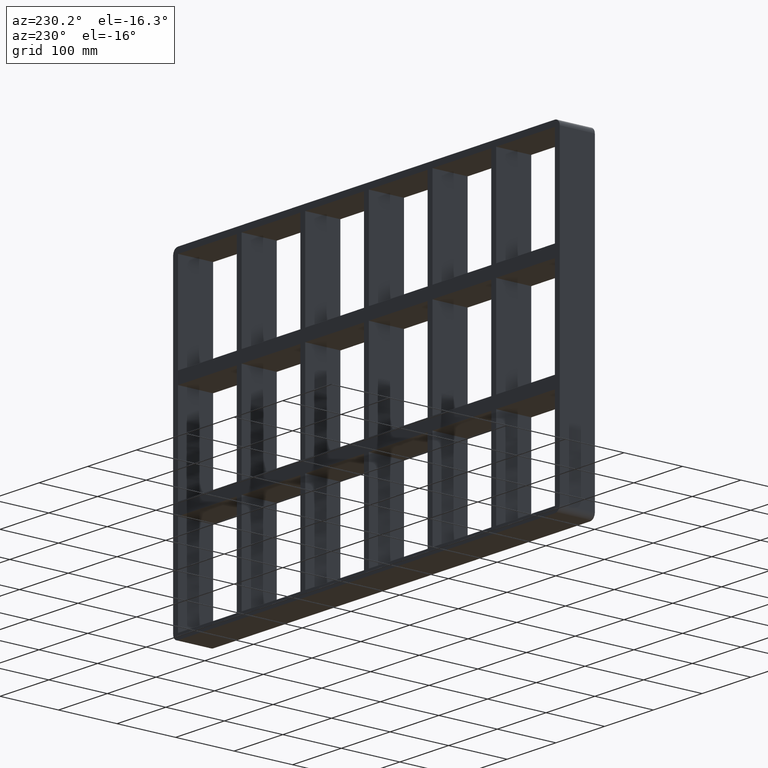
[diagram: clean part render]
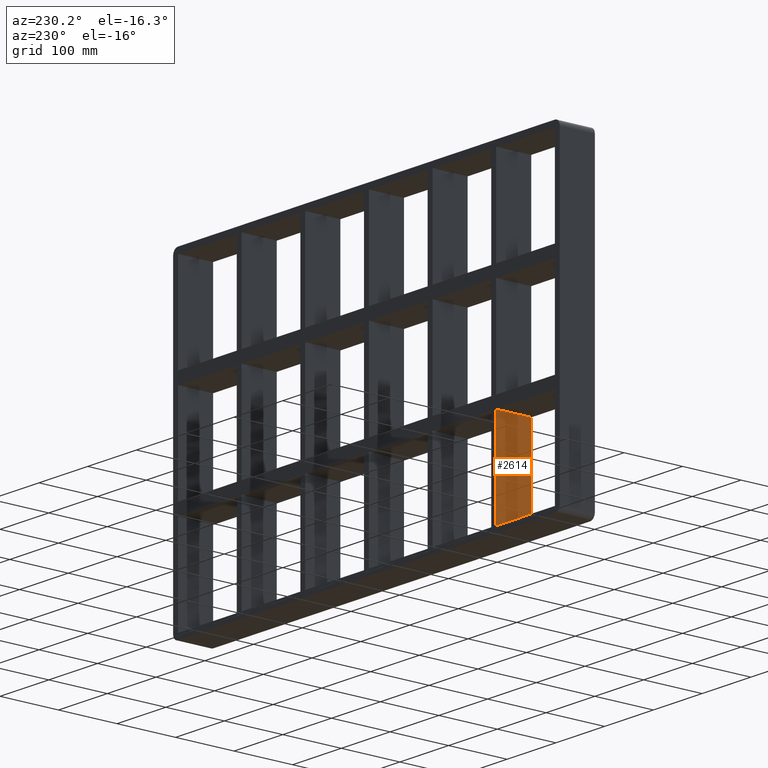
[diagram: same view with one face highlighted and labeled with its STEP entity id]
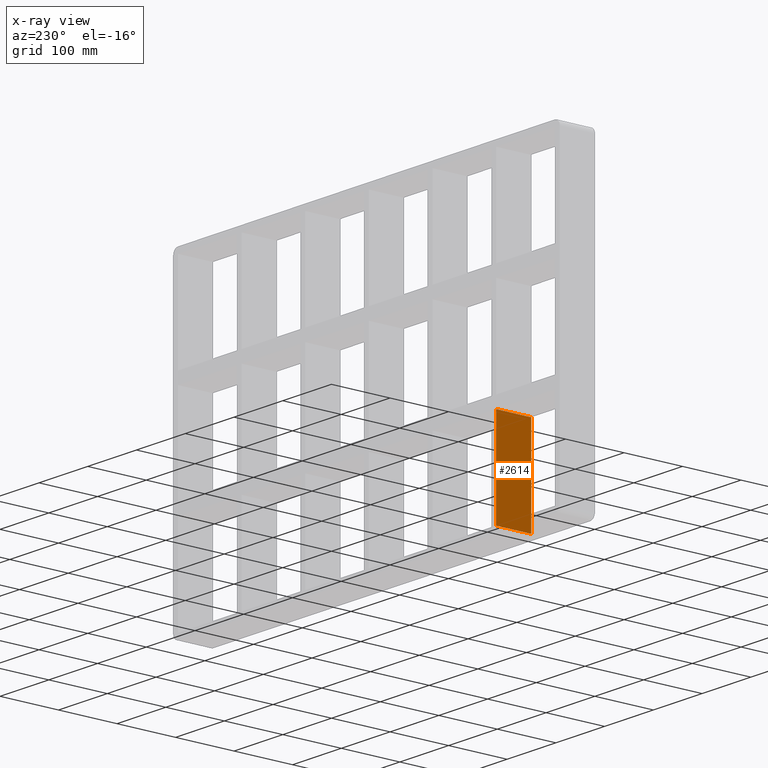
[diagram: x-ray of the same camera — body ghosted, the highlighted face saturated]
A machine part, auxiliary view. The second image highlights one B-rep face of the part: STEP entity #2614.
The next image is the same camera in x-ray: the body ghosted, the highlighted face saturated — about 0% of this face is hidden behind the body in this view.
In plain terms, the highlighted planar face has unit normal (-1, 0, 0).
Its self-contained STEP definition (entity closure, byte-faithful):
#1258=CARTESIAN_POINT('',(-266.00000000000131,57.0,-259.25));
#1259=VERTEX_POINT('',#1258);
#1266=CARTESIAN_POINT('',(-266.00000000000136,57.0,-99.750000000009322));
#1267=VERTEX_POINT('',#1266);
#1268=CARTESIAN_POINT('',(-266.00000000000131,57.0,-259.25));
#1269=DIRECTION('',(0.0,0.0,1.0));
#1270=VECTOR('',#1269,159.49999999999065);
#1271=LINE('',#1268,#1270);
#1272=EDGE_CURVE('',#1259,#1267,#1271,.T.);
#2293=CARTESIAN_POINT('',(-266.00000000000136,-3.0,-99.750000000009322));
#2294=VERTEX_POINT('',#2293);
#2303=CARTESIAN_POINT('',(-266.00000000000131,-3.0,-259.25));
#2304=VERTEX_POINT('',#2303);
#2305=CARTESIAN_POINT('',(-266.00000000000131,-3.0,-259.25));
#2306=DIRECTION('',(0.0,0.0,1.0));
#2307=VECTOR('',#2306,159.49999999999065);
#2308=LINE('',#2305,#2307);
#2309=EDGE_CURVE('',#2304,#2294,#2308,.T.);
#2516=CARTESIAN_POINT('',(-266.00000000000125,-3.0,-99.750000000009308));
#2517=DIRECTION('',(0.0,1.0,0.0));
#2518=VECTOR('',#2517,60.0);
#2519=LINE('',#2516,#2518);
#2520=EDGE_CURVE('',#2294,#1267,#2519,.T.);
#2598=CARTESIAN_POINT('',(-266.00000000000131,-3.0,-259.25));
#2599=DIRECTION('',(-1.0,0.0,0.0));
#2600=DIRECTION('',(0.0,0.0,1.0));
#2601=AXIS2_PLACEMENT_3D('',#2598,#2599,#2600);
#2602=PLANE('',#2601);
#2603=ORIENTED_EDGE('',*,*,#2520,.T.);
#2604=ORIENTED_EDGE('',*,*,#1272,.F.);
#2605=CARTESIAN_POINT('',(-266.00000000000131,-3.0,-259.25));
#2606=DIRECTION('',(0.0,1.0,0.0));
#2607=VECTOR('',#2606,60.000000000000007);
#2608=LINE('',#2605,#2607);
#2609=EDGE_CURVE('',#2304,#1259,#2608,.T.);
#2610=ORIENTED_EDGE('',*,*,#2609,.F.);
#2611=ORIENTED_EDGE('',*,*,#2309,.T.);
#2612=EDGE_LOOP('',(#2603,#2604,#2610,#2611));
#2613=FACE_OUTER_BOUND('',#2612,.T.);
#2614=ADVANCED_FACE('',(#2613),#2602,.T.);